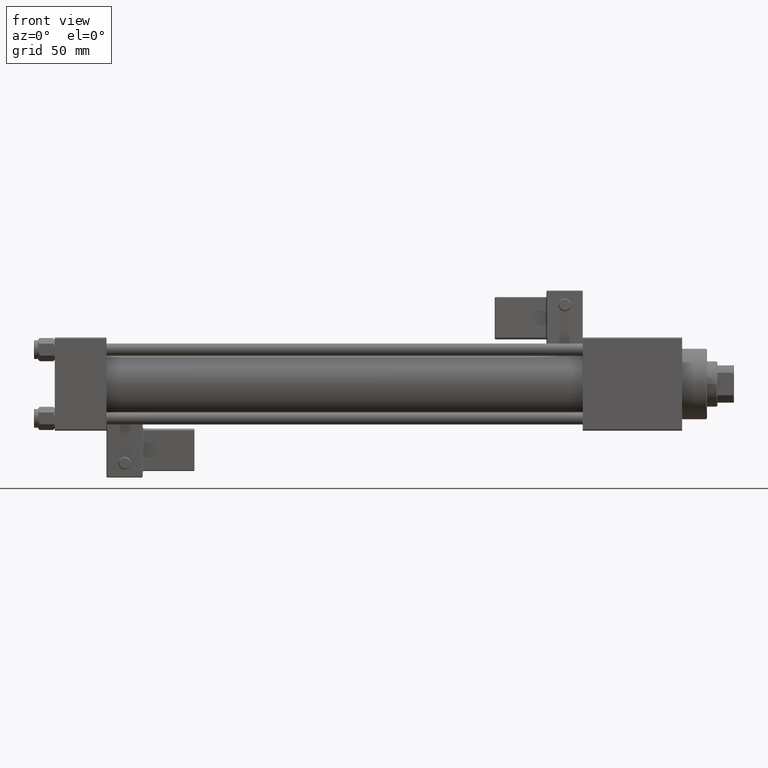
[diagram: clean part render]
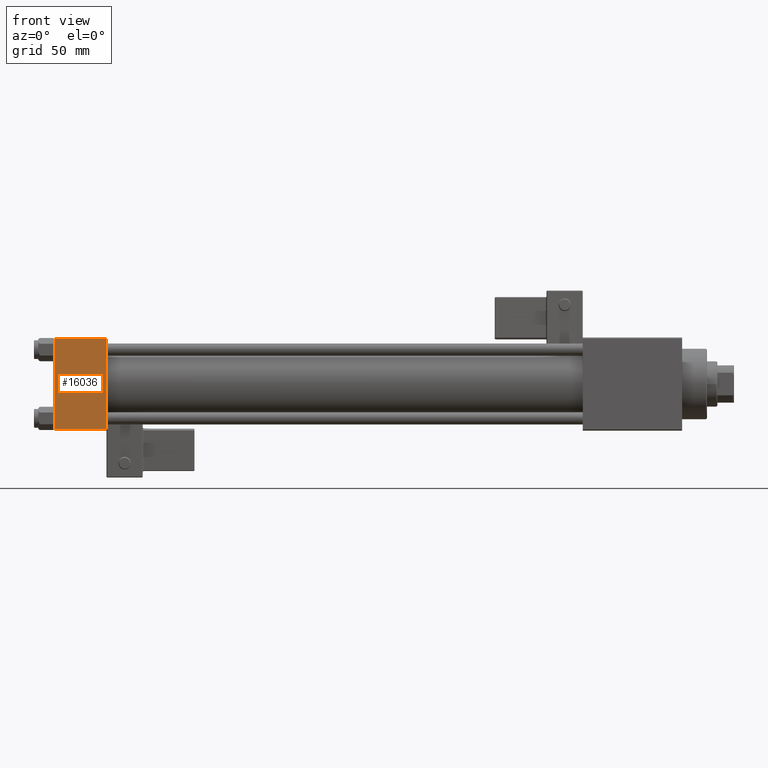
[diagram: same view with one face highlighted and labeled with its STEP entity id]
A machine part, front view. The second image highlights one B-rep face of the part: STEP entity #16036.
In plain terms, the highlighted planar face has unit normal (0, 1, 0).
Its self-contained STEP definition (entity closure, byte-faithful):
#852 = CARTESIAN_POINT ( 'NONE',  ( 0.000000000000000000, -22.50000000000000000, -21.99999999999997158 ) ) ;
#929 = LINE ( 'NONE', #34097, #52196 ) ;
#2082 = VECTOR ( 'NONE', #21738, 1000.000000000000000 ) ;
#5164 = CARTESIAN_POINT ( 'NONE',  ( 0.000000000000000000, -22.50000000000000000, 22.50000000000000000 ) ) ;
#6991 = VERTEX_POINT ( 'NONE', #852 ) ;
#7238 = DIRECTION ( 'NONE',  ( -1.000000000000000000, 0.000000000000000000, 0.000000000000000000 ) ) ;
#9154 = VERTEX_POINT ( 'NONE', #26063 ) ;
#12134 = DIRECTION ( 'NONE',  ( -0.000000000000000000, 1.000000000000000000, 0.000000000000000000 ) ) ;
#16036 = ADVANCED_FACE ( 'NONE', ( #36637 ), #19463, .F. ) ;
#16924 = LINE ( 'NONE', #21542, #43773 ) ;
#17451 = DIRECTION ( 'NONE',  ( 0.000000000000000000, 0.000000000000000000, -1.000000000000000000 ) ) ;
#17454 = VERTEX_POINT ( 'NONE', #22228 ) ;
#19463 = PLANE ( 'NONE',  #24129 ) ;
#20093 = ORIENTED_EDGE ( 'NONE', *, *, #32054, .T. ) ;
#21542 = CARTESIAN_POINT ( 'NONE',  ( 25.00000000000000000, -22.50000000000000000, 22.50000000000000000 ) ) ;
#21674 = EDGE_CURVE ( 'NONE', #6991, #9154, #929, .T. ) ;
#21738 = DIRECTION ( 'NONE',  ( 0.000000000000000000, 0.000000000000000000, -1.000000000000000000 ) ) ;
#22228 = CARTESIAN_POINT ( 'NONE',  ( 25.00000000000000000, -22.50000000000000000, 22.00000000000000000 ) ) ;
#24129 = AXIS2_PLACEMENT_3D ( 'NONE', #24644, #12134, #28716 ) ;
#24174 = EDGE_LOOP ( 'NONE', ( #20093, #29379, #50076, #46249 ) ) ;
#24644 = CARTESIAN_POINT ( 'NONE',  ( 25.00000000000000000, -22.50000000000000000, 22.50000000000000000 ) ) ;
#26063 = CARTESIAN_POINT ( 'NONE',  ( 25.00000000000000000, -22.50000000000000000, -21.99999999999997158 ) ) ;
#28386 = VECTOR ( 'NONE', #7238, 1000.000000000000000 ) ;
#28716 = DIRECTION ( 'NONE',  ( 0.000000000000000000, -0.000000000000000000, 1.000000000000000000 ) ) ;
#29379 = ORIENTED_EDGE ( 'NONE', *, *, #21674, .T. ) ;
#31625 = EDGE_CURVE ( 'NONE', #17454, #9154, #16924, .T. ) ;
#32054 = EDGE_CURVE ( 'NONE', #43392, #6991, #42442, .T. ) ;
#32254 = CARTESIAN_POINT ( 'NONE',  ( 25.00000000000000000, -22.50000000000000000, 22.00000000000000000 ) ) ;
#33832 = DIRECTION ( 'NONE',  ( 1.000000000000000000, 0.000000000000000000, 0.000000000000000000 ) ) ;
#34097 = CARTESIAN_POINT ( 'NONE',  ( 25.00000000000000000, -22.50000000000000000, -21.99999999999998579 ) ) ;
#36637 = FACE_OUTER_BOUND ( 'NONE', #24174, .T. ) ;
#37168 = LINE ( 'NONE', #32254, #28386 ) ;
#41736 = EDGE_CURVE ( 'NONE', #17454, #43392, #37168, .T. ) ;
#42442 = LINE ( 'NONE', #5164, #2082 ) ;
#43392 = VERTEX_POINT ( 'NONE', #49592 ) ;
#43773 = VECTOR ( 'NONE', #17451, 1000.000000000000000 ) ;
#46249 = ORIENTED_EDGE ( 'NONE', *, *, #41736, .T. ) ;
#49592 = CARTESIAN_POINT ( 'NONE',  ( 0.000000000000000000, -22.50000000000000000, 22.00000000000000000 ) ) ;
#50076 = ORIENTED_EDGE ( 'NONE', *, *, #31625, .F. ) ;
#52196 = VECTOR ( 'NONE', #33832, 1000.000000000000000 ) ;